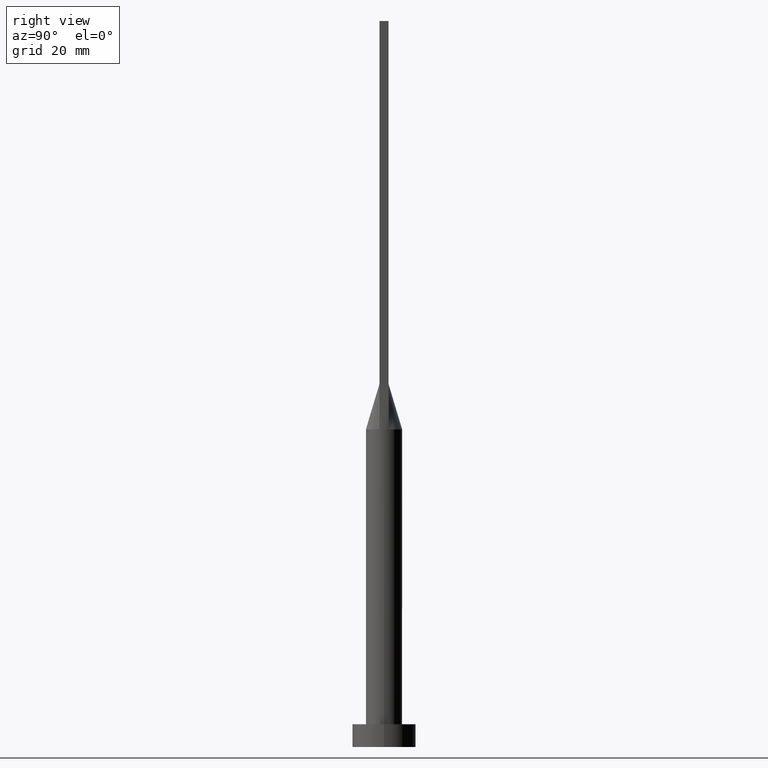
[diagram: clean part render]
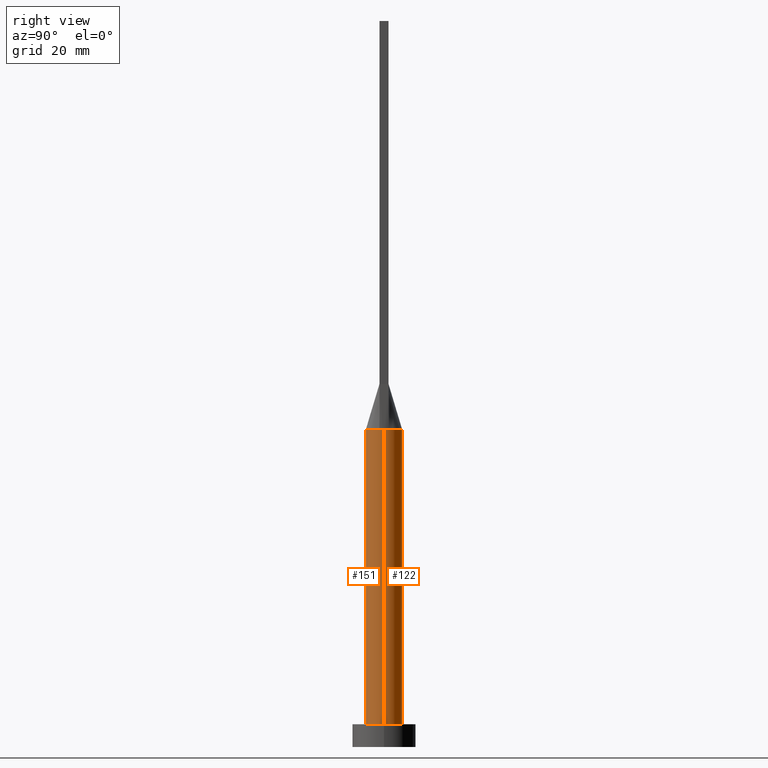
[diagram: same view with one multi-face feature highlighted, each face labeled with its STEP entity id]
A machine part, right view. The highlighted faces form ONE feature: a constant-radius fillet chain: 2 tangent blend faces with common blend radius 4 mm. The faces share edges in the B-rep.
Their STEP definitions:
[1] entity #151 (Cylinder):
#5 = DIRECTION ( 'NONE',  ( -1.000000000000000000, 0.000000000000000000, 0.000000000000000000 ) ) ;
#6 = VERTEX_POINT ( 'NONE', #203 ) ;
#27 = AXIS2_PLACEMENT_3D ( 'NONE', #455, #453, #5 ) ;
#32 = CIRCLE ( 'NONE', #52, 4.000000000000000000 ) ;
#34 = DIRECTION ( 'NONE',  ( -0.000000000000000000, -0.000000000000000000, -1.000000000000000000 ) ) ;
#38 = LINE ( 'NONE', #358, #482 ) ;
#42 = DIRECTION ( 'NONE',  ( 0.000000000000000000, 0.000000000000000000, 1.000000000000000000 ) ) ;
#45 = FACE_OUTER_BOUND ( 'NONE', #470, .T. ) ;
#52 = AXIS2_PLACEMENT_3D ( 'NONE', #224, #262, #445 ) ;
#57 = DIRECTION ( 'NONE',  ( 1.000000000000000000, 0.000000000000000000, 0.000000000000000000 ) ) ;
#70 = ORIENTED_EDGE ( 'NONE', *, *, #259, .T. ) ;
#92 = DIRECTION ( 'NONE',  ( 0.000000000000000000, 0.000000000000000000, 1.000000000000000000 ) ) ;
#94 = ORIENTED_EDGE ( 'NONE', *, *, #357, .F. ) ;
#104 = VERTEX_POINT ( 'NONE', #185 ) ;
#139 = DIRECTION ( 'NONE',  ( 0.000000000000000000, 0.000000000000000000, 1.000000000000000000 ) ) ;
#141 = VERTEX_POINT ( 'NONE', #143 ) ;
#142 = EDGE_CURVE ( 'NONE', #296, #104, #528, .T. ) ;
#143 = CARTESIAN_POINT ( 'NONE',  ( 3.865244591400370577, -1.030732999276501527, 70.00000000000000000 ) ) ;
#147 = AXIS2_PLACEMENT_3D ( 'NONE', #529, #139, #171 ) ;
#151 = ADVANCED_FACE ( 'NONE', ( #45 ), #534, .T. ) ;
#171 = DIRECTION ( 'NONE',  ( 1.000000000000000000, 0.000000000000000000, 0.000000000000000000 ) ) ;
#184 = DIRECTION ( 'NONE',  ( 1.000000000000000000, -6.217248937900876626E-15, 0.000000000000000000 ) ) ;
#185 = CARTESIAN_POINT ( 'NONE',  ( -3.865220763612065902, -1.030726602927787949, 70.00000000000000000 ) ) ;
#188 = CARTESIAN_POINT ( 'NONE',  ( 4.000000000000000000, -1.256865613583667397E-17, 70.00000000000000000 ) ) ;
#200 = ORIENTED_EDGE ( 'NONE', *, *, #383, .F. ) ;
#203 = CARTESIAN_POINT ( 'NONE',  ( -4.000000000000000000, 0.000000000000000000, 5.000000000000000000 ) ) ;
#207 = VECTOR ( 'NONE', #433, 1000.000000000000000 ) ;
#224 = CARTESIAN_POINT ( 'NONE',  ( 0.000000000000000000, 0.000000000000000000, 5.000000000000000000 ) ) ;
#230 = AXIS2_PLACEMENT_3D ( 'NONE', #415, #92, #57 ) ;
#245 = CARTESIAN_POINT ( 'NONE',  ( -4.000000000000000000, 0.000000000000000000, 70.00000000000000000 ) ) ;
#250 = ORIENTED_EDGE ( 'NONE', *, *, #459, .T. ) ;
#259 = EDGE_CURVE ( 'NONE', #296, #6, #393, .T. ) ;
#262 = DIRECTION ( 'NONE',  ( 0.000000000000000000, 0.000000000000000000, 1.000000000000000000 ) ) ;
#264 = CARTESIAN_POINT ( 'NONE',  ( 0.000000000000000000, 0.000000000000000000, 70.00000000000000000 ) ) ;
#272 = CARTESIAN_POINT ( 'NONE',  ( 4.000000000000000000, 4.898587196589412829E-16, 5.000000000000000000 ) ) ;
#296 = VERTEX_POINT ( 'NONE', #360 ) ;
#307 = CIRCLE ( 'NONE', #338, 4.000000000000000000 ) ;
#338 = AXIS2_PLACEMENT_3D ( 'NONE', #264, #42, #184 ) ;
#351 = EDGE_CURVE ( 'NONE', #141, #552, #307, .T. ) ;
#357 = EDGE_CURVE ( 'NONE', #104, #141, #403, .T. ) ;
#358 = CARTESIAN_POINT ( 'NONE',  ( 4.000000000000000000, 4.898587196589412829E-16, 70.00000000000000000 ) ) ;
#360 = CARTESIAN_POINT ( 'NONE',  ( -4.000000000000000000, -2.459132308497027359E-16, 70.00000000000000000 ) ) ;
#383 = EDGE_CURVE ( 'NONE', #552, #388, #38, .T. ) ;
#388 = VERTEX_POINT ( 'NONE', #272 ) ;
#393 = LINE ( 'NONE', #245, #207 ) ;
#403 = CIRCLE ( 'NONE', #147, 4.000000000000000000 ) ;
#412 = ORIENTED_EDGE ( 'NONE', *, *, #351, .F. ) ;
#415 = CARTESIAN_POINT ( 'NONE',  ( 0.000000000000000000, 0.000000000000000000, 70.00000000000000000 ) ) ;
#433 = DIRECTION ( 'NONE',  ( -0.000000000000000000, -0.000000000000000000, -1.000000000000000000 ) ) ;
#445 = DIRECTION ( 'NONE',  ( 1.000000000000000000, 0.000000000000000000, 0.000000000000000000 ) ) ;
#453 = DIRECTION ( 'NONE',  ( -0.000000000000000000, -0.000000000000000000, -1.000000000000000000 ) ) ;
#455 = CARTESIAN_POINT ( 'NONE',  ( 0.000000000000000000, 0.000000000000000000, 70.00000000000000000 ) ) ;
#459 = EDGE_CURVE ( 'NONE', #6, #388, #32, .T. ) ;
#470 = EDGE_LOOP ( 'NONE', ( #200, #412, #94, #540, #70, #250 ) ) ;
#482 = VECTOR ( 'NONE', #34, 1000.000000000000000 ) ;
#528 = CIRCLE ( 'NONE', #230, 4.000000000000000000 ) ;
#529 = CARTESIAN_POINT ( 'NONE',  ( 0.000000000000000000, 0.000000000000000000, 70.00000000000000000 ) ) ;
#534 = CYLINDRICAL_SURFACE ( 'NONE', #27, 4.000000000000000000 ) ;
#540 = ORIENTED_EDGE ( 'NONE', *, *, #142, .F. ) ;
#552 = VERTEX_POINT ( 'NONE', #188 ) ;
[2] entity #122 (Cylinder):
#6 = VERTEX_POINT ( 'NONE', #203 ) ;
#12 = EDGE_CURVE ( 'NONE', #388, #6, #452, .T. ) ;
#22 = VERTEX_POINT ( 'NONE', #480 ) ;
#34 = DIRECTION ( 'NONE',  ( -0.000000000000000000, -0.000000000000000000, -1.000000000000000000 ) ) ;
#38 = LINE ( 'NONE', #358, #482 ) ;
#56 = CARTESIAN_POINT ( 'NONE',  ( 3.865212754195084699, 1.030724393897464841, 70.00000000000000000 ) ) ;
#62 = CIRCLE ( 'NONE', #490, 4.000000000000000000 ) ;
#91 = CARTESIAN_POINT ( 'NONE',  ( -3.267840578657194239, 2.338604872288698289, 70.00000000000001421 ) ) ;
#109 = AXIS2_PLACEMENT_3D ( 'NONE', #327, #367, #192 ) ;
#120 = EDGE_CURVE ( 'NONE', #505, #22, #189, .T. ) ;
#122 = ADVANCED_FACE ( 'NONE', ( #180 ), #542, .T. ) ;
#137 = CARTESIAN_POINT ( 'NONE',  ( -3.781952206537765537, 1.341853921743403788, 70.00000000000001421 ) ) ;
#140 = CARTESIAN_POINT ( 'NONE',  ( 0.000000000000000000, 0.000000000000000000, 70.00000000000000000 ) ) ;
#160 = DIRECTION ( 'NONE',  ( 0.000000000000000000, 0.000000000000000000, 1.000000000000000000 ) ) ;
#162 = ORIENTED_EDGE ( 'NONE', *, *, #259, .F. ) ;
#163 = ORIENTED_EDGE ( 'NONE', *, *, #383, .T. ) ;
#169 = DIRECTION ( 'NONE',  ( 0.000000000000000000, 0.000000000000000000, 1.000000000000000000 ) ) ;
#178 = DIRECTION ( 'NONE',  ( 1.000000000000000000, 0.000000000000000000, 0.000000000000000000 ) ) ;
#180 = FACE_OUTER_BOUND ( 'NONE', #191, .T. ) ;
#183 = CARTESIAN_POINT ( 'NONE',  ( 3.865212754195084699, 1.030724393897464841, 70.00000000000000000 ) ) ;
#188 = CARTESIAN_POINT ( 'NONE',  ( 4.000000000000000000, -1.256865613583667397E-17, 70.00000000000000000 ) ) ;
#189 = B_SPLINE_CURVE_WITH_KNOTS ( 'NONE', 3,
 ( #183, #276, #361, #537, #408, #450, #489, #234, #504, #543, #269, #190, #366, #193, #91, #406, #137, #319 ),
 .UNSPECIFIED., .F., .F.,
 ( 4, 2, 2, 2, 2, 2, 2, 2, 4 ),
 ( 0.000000000000000000, 0.1250000000000000000, 0.2500000000000000000, 0.3750000000000000000, 0.5000000000000000000, 0.6250000000000000000, 0.7500000000000000000, 0.8750000000000000000, 1.000000000000000000 ),
 .UNSPECIFIED. ) ;
#190 = CARTESIAN_POINT ( 'NONE',  ( -1.940702937457743138, 3.532374760555930582, 69.99999999999998579 ) ) ;
#191 = EDGE_LOOP ( 'NONE', ( #426, #163, #423, #162, #447, #288 ) ) ;
#192 = DIRECTION ( 'NONE',  ( 1.000000000000000000, 0.000000000000000000, 0.000000000000000000 ) ) ;
#193 = CARTESIAN_POINT ( 'NONE',  ( -3.009488128496037529, 2.672487015486668671, 69.99999999999998579 ) ) ;
#203 = CARTESIAN_POINT ( 'NONE',  ( -4.000000000000000000, 0.000000000000000000, 5.000000000000000000 ) ) ;
#207 = VECTOR ( 'NONE', #433, 1000.000000000000000 ) ;
#234 = CARTESIAN_POINT ( 'NONE',  ( 1.023074425454087999, 3.898373771260456255, 69.99999999999998579 ) ) ;
#245 = CARTESIAN_POINT ( 'NONE',  ( -4.000000000000000000, 0.000000000000000000, 70.00000000000000000 ) ) ;
#259 = EDGE_CURVE ( 'NONE', #296, #6, #393, .T. ) ;
#269 = CARTESIAN_POINT ( 'NONE',  ( -1.023074425454088221, 3.898373771260455811, 70.00000000000001421 ) ) ;
#271 = EDGE_CURVE ( 'NONE', #552, #505, #62, .T. ) ;
#272 = CARTESIAN_POINT ( 'NONE',  ( 4.000000000000000000, 4.898587196589412829E-16, 5.000000000000000000 ) ) ;
#276 = CARTESIAN_POINT ( 'NONE',  ( 3.781952206537764205, 1.341853921743403788, 70.00000000000001421 ) ) ;
#288 = ORIENTED_EDGE ( 'NONE', *, *, #120, .F. ) ;
#296 = VERTEX_POINT ( 'NONE', #360 ) ;
#298 = AXIS2_PLACEMENT_3D ( 'NONE', #140, #371, #458 ) ;
#305 = DIRECTION ( 'NONE',  ( 1.000000000000000000, 0.000000000000000000, 0.000000000000000000 ) ) ;
#308 = CIRCLE ( 'NONE', #109, 4.000000000000000000 ) ;
#319 = CARTESIAN_POINT ( 'NONE',  ( -3.865236553917747120, 1.030730781768519622, 70.00000000000000000 ) ) ;
#325 = AXIS2_PLACEMENT_3D ( 'NONE', #381, #160, #178 ) ;
#327 = CARTESIAN_POINT ( 'NONE',  ( 0.000000000000000000, 0.000000000000000000, 70.00000000000000000 ) ) ;
#358 = CARTESIAN_POINT ( 'NONE',  ( 4.000000000000000000, 4.898587196589412829E-16, 70.00000000000000000 ) ) ;
#360 = CARTESIAN_POINT ( 'NONE',  ( -4.000000000000000000, -2.459132308497027359E-16, 70.00000000000000000 ) ) ;
#361 = CARTESIAN_POINT ( 'NONE',  ( 3.653499896451231521, 1.673258289339057958, 70.00000000000000000 ) ) ;
#366 = CARTESIAN_POINT ( 'NONE',  ( -2.346407003458401253, 3.270103945996944095, 70.00000000000001421 ) ) ;
#367 = DIRECTION ( 'NONE',  ( 0.000000000000000000, 0.000000000000000000, 1.000000000000000000 ) ) ;
#371 = DIRECTION ( 'NONE',  ( -0.000000000000000000, -0.000000000000000000, -1.000000000000000000 ) ) ;
#381 = CARTESIAN_POINT ( 'NONE',  ( 0.000000000000000000, 0.000000000000000000, 5.000000000000000000 ) ) ;
#383 = EDGE_CURVE ( 'NONE', #552, #388, #38, .T. ) ;
#388 = VERTEX_POINT ( 'NONE', #272 ) ;
#393 = LINE ( 'NONE', #245, #207 ) ;
#406 = CARTESIAN_POINT ( 'NONE',  ( -3.653499896451231521, 1.673258289339058180, 70.00000000000001421 ) ) ;
#408 = CARTESIAN_POINT ( 'NONE',  ( 3.009488128496037085, 2.672487015486669115, 70.00000000000000000 ) ) ;
#423 = ORIENTED_EDGE ( 'NONE', *, *, #12, .T. ) ;
#426 = ORIENTED_EDGE ( 'NONE', *, *, #271, .F. ) ;
#433 = DIRECTION ( 'NONE',  ( -0.000000000000000000, -0.000000000000000000, -1.000000000000000000 ) ) ;
#447 = ORIENTED_EDGE ( 'NONE', *, *, #536, .F. ) ;
#450 = CARTESIAN_POINT ( 'NONE',  ( 2.346407003458400808, 3.270103945996944983, 69.99999999999998579 ) ) ;
#452 = CIRCLE ( 'NONE', #325, 4.000000000000000000 ) ;
#458 = DIRECTION ( 'NONE',  ( -1.000000000000000000, 0.000000000000000000, 0.000000000000000000 ) ) ;
#480 = CARTESIAN_POINT ( 'NONE',  ( -3.865236553917747120, 1.030730781768519622, 70.00000000000000000 ) ) ;
#482 = VECTOR ( 'NONE', #34, 1000.000000000000000 ) ;
#489 = CARTESIAN_POINT ( 'NONE',  ( 1.940702937457743582, 3.532374760555930582, 70.00000000000000000 ) ) ;
#490 = AXIS2_PLACEMENT_3D ( 'NONE', #567, #169, #305 ) ;
#504 = CARTESIAN_POINT ( 'NONE',  ( 0.5121855420560009753, 4.000000000000000888, 70.00000000000000000 ) ) ;
#505 = VERTEX_POINT ( 'NONE', #56 ) ;
#536 = EDGE_CURVE ( 'NONE', #22, #296, #308, .T. ) ;
#537 = CARTESIAN_POINT ( 'NONE',  ( 3.267840578657193795, 2.338604872288698289, 70.00000000000000000 ) ) ;
#542 = CYLINDRICAL_SURFACE ( 'NONE', #298, 4.000000000000000000 ) ;
#543 = CARTESIAN_POINT ( 'NONE',  ( -0.5121855420560009753, 4.000000000000000888, 69.99999999999998579 ) ) ;
#552 = VERTEX_POINT ( 'NONE', #188 ) ;
#567 = CARTESIAN_POINT ( 'NONE',  ( 0.000000000000000000, 0.000000000000000000, 70.00000000000000000 ) ) ;